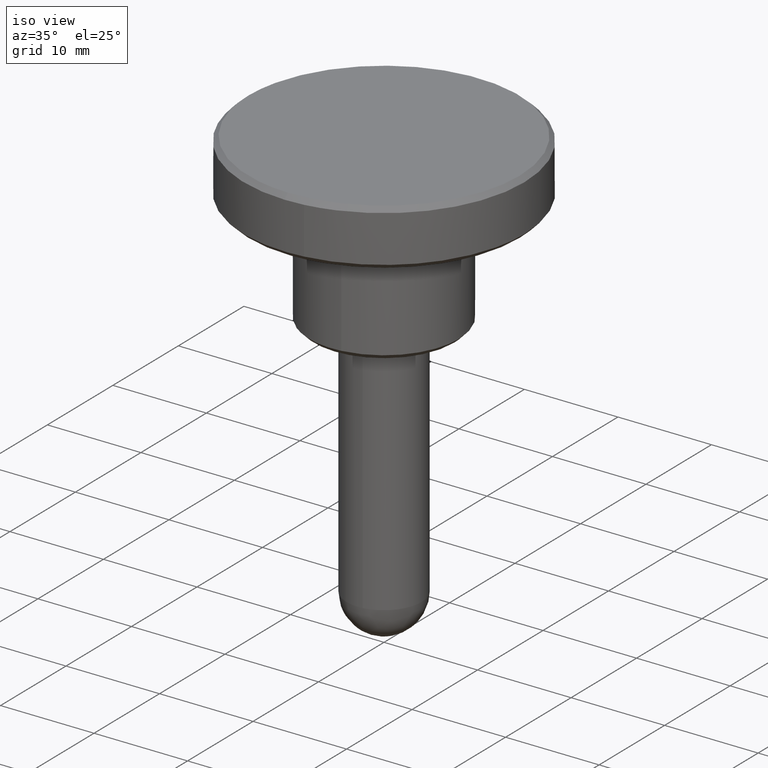
[diagram: clean part render]
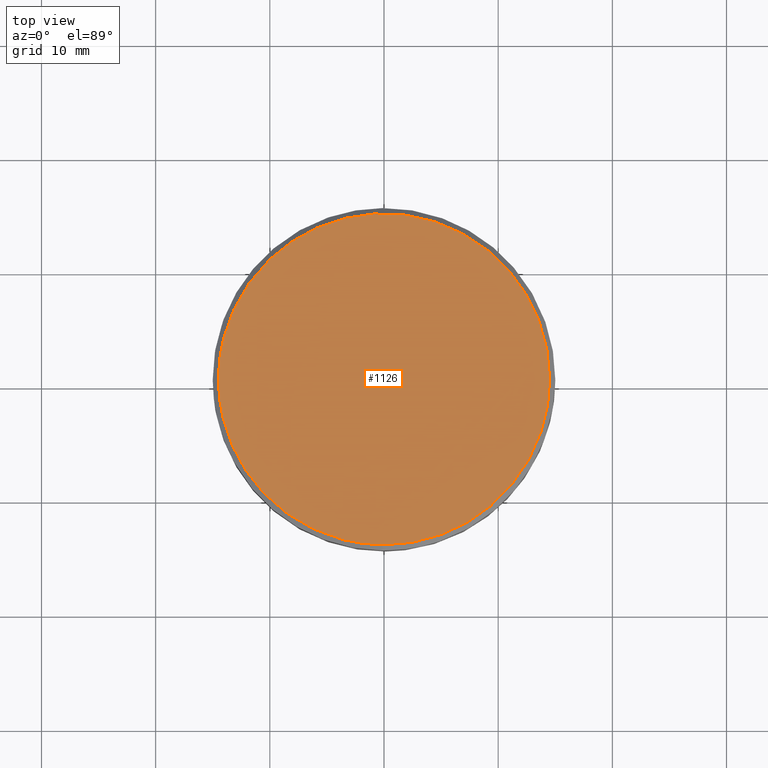
[diagram: tour spotlight — one face highlighted and labeled with its STEP entity id]
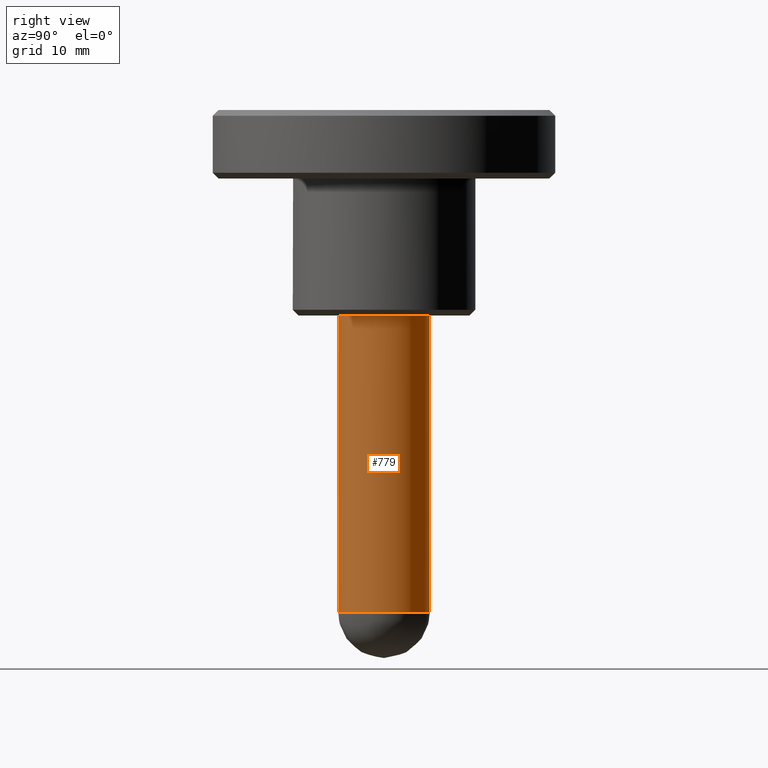
[diagram: tour spotlight — one face highlighted and labeled with its STEP entity id]
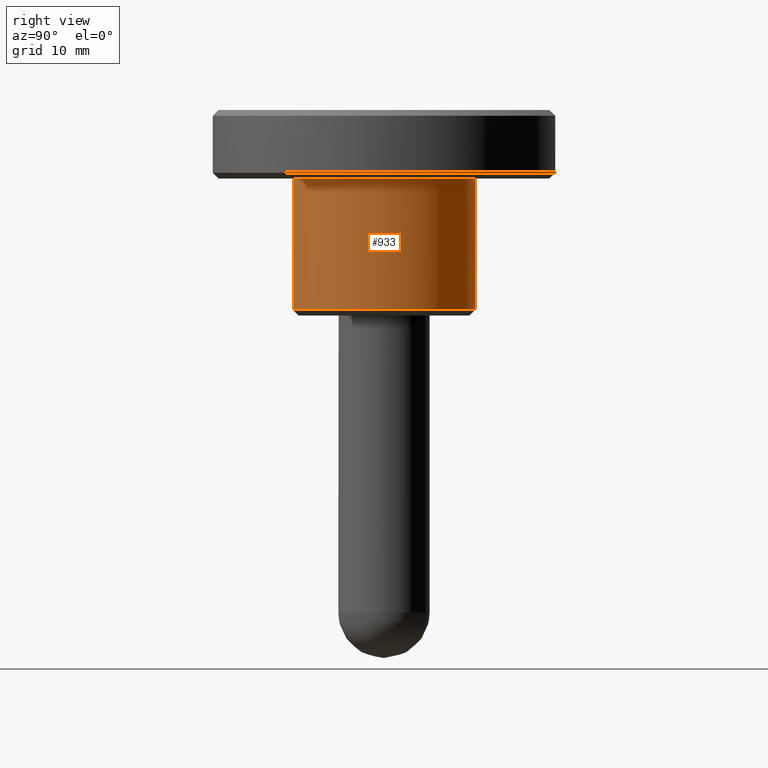
[diagram: tour spotlight — one face highlighted and labeled with its STEP entity id]
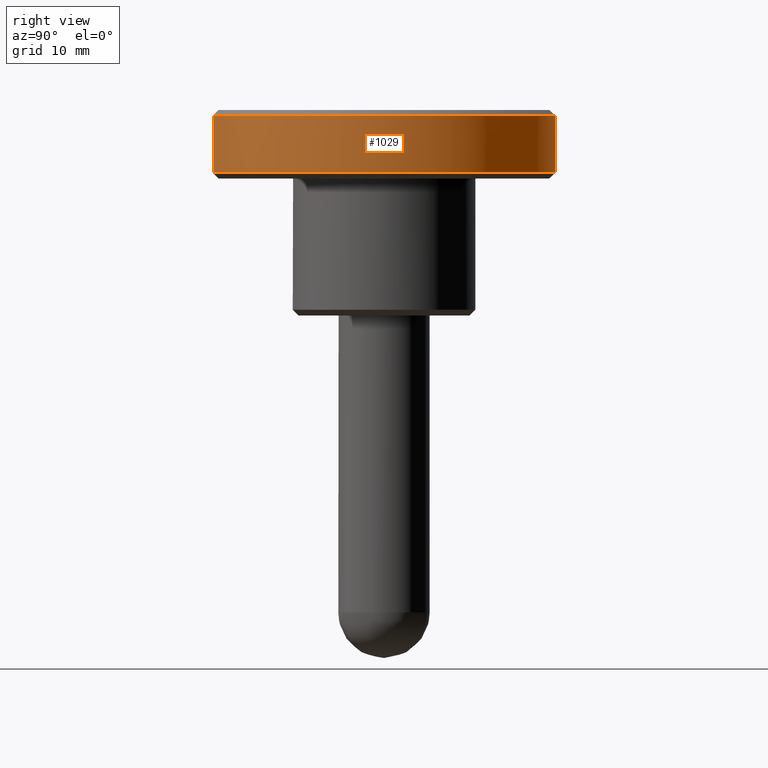
[diagram: tour spotlight — one face highlighted and labeled with its STEP entity id]
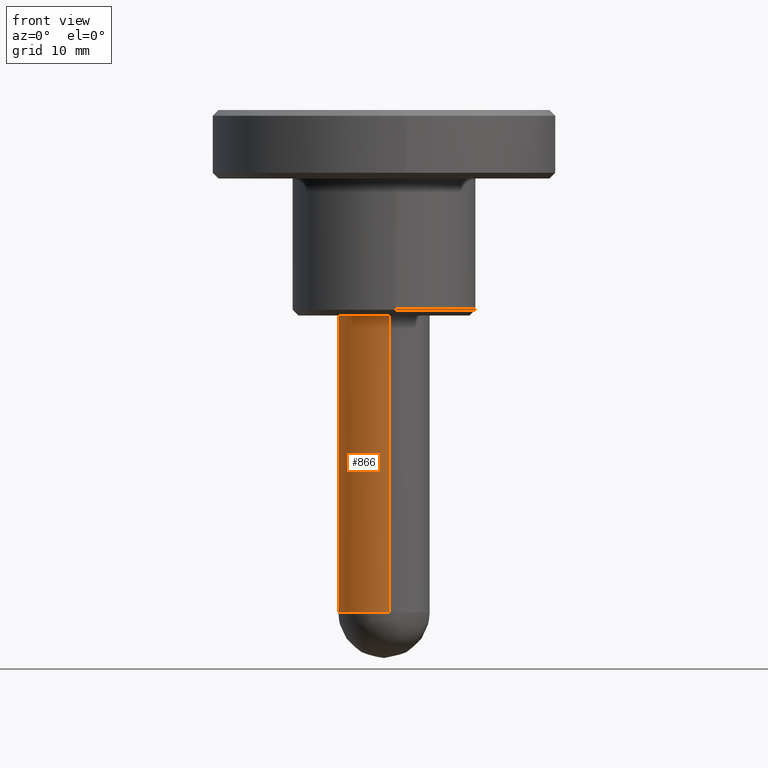
[diagram: tour spotlight — one face highlighted and labeled with its STEP entity id]
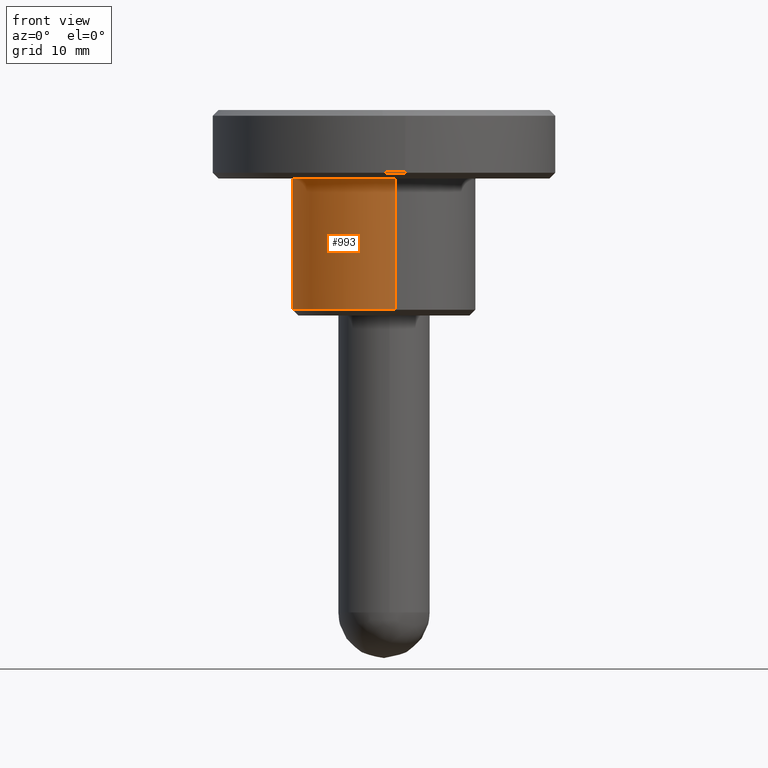
[diagram: tour spotlight — one face highlighted and labeled with its STEP entity id]
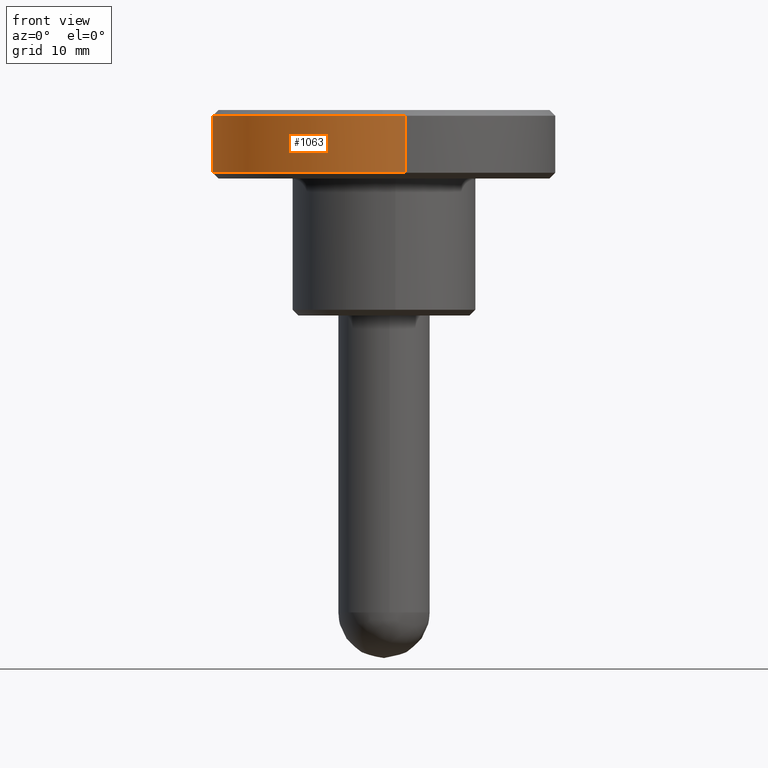
[diagram: tour spotlight — one face highlighted and labeled with its STEP entity id]
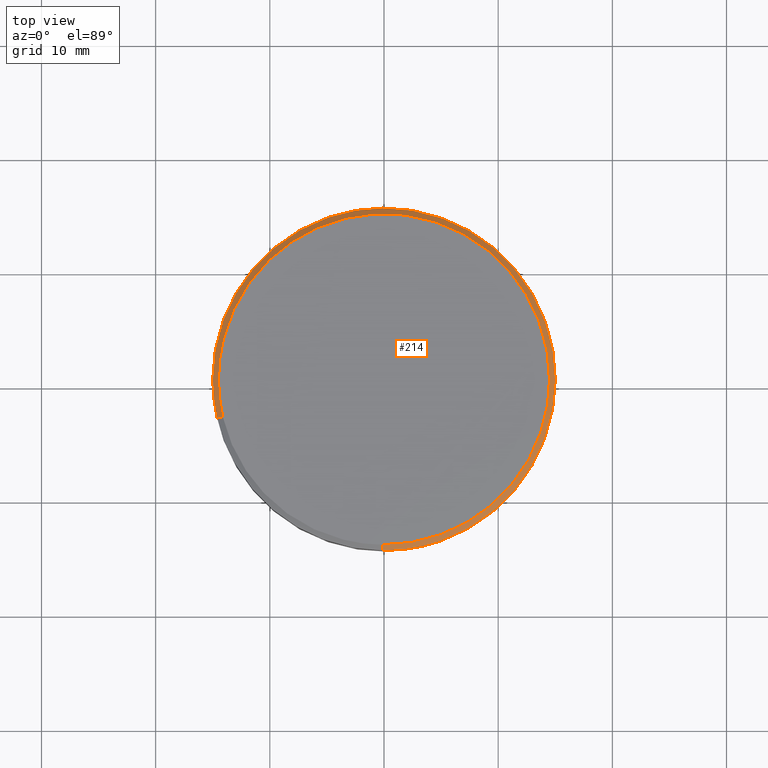
[diagram: tour spotlight — one face highlighted and labeled with its STEP entity id]
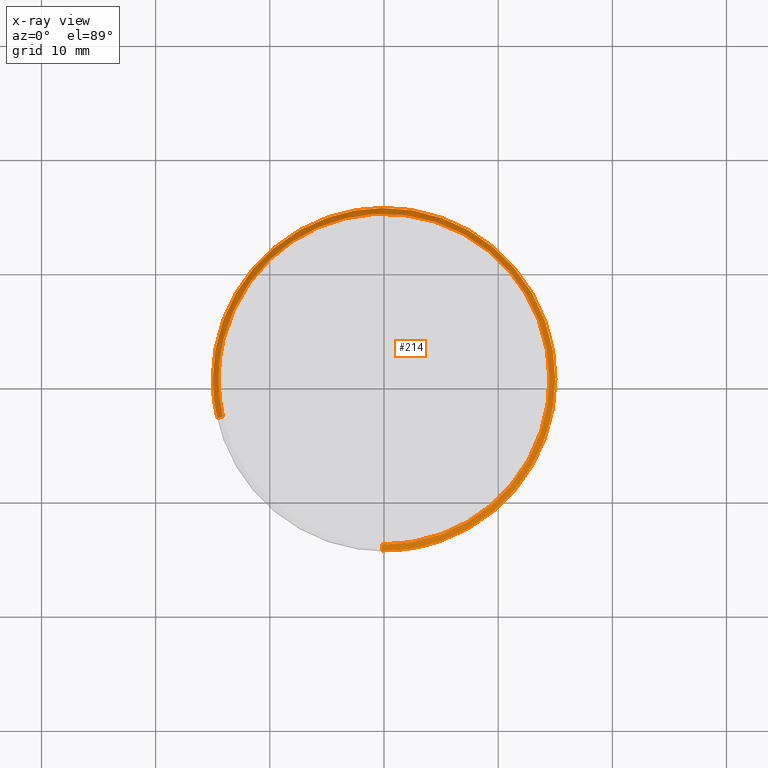
[diagram: x-ray of the same camera — body ghosted, this tour face saturated]
A machine part: a face-by-face anatomy tour. The part has 16 B-rep faces; the first image is the clean iso view, then the 8 largest visible faces are spotlighted one at a time (largest first), each with its STEP entity span.

Face 1 — top view, entity #1126. In plain terms, the highlighted face is a freeform B-spline surface patch.
Definition (entity closure, byte-faithful):
#87=CARTESIAN_POINT('',(-14.126163221083219,-3.271316654116937,17.999999999993580));
#88=VERTEX_POINT('',#87);
#94=CARTESIAN_POINT('',(-14.500000000000000,0.0,18.0));
#95=VERTEX_POINT('',#94);
#96=CARTESIAN_POINT('',(-14.500000000000000,0.0,18.0));
#97=CARTESIAN_POINT('',(-14.500000000000000,-1.657018829912993,18.0));
#98=CARTESIAN_POINT('',(-14.126163221083218,-3.271316654116937,17.999999999993580));
#106=(BOUNDED_CURVE()B_SPLINE_CURVE(2,(#96,#97,#98),.UNSPECIFIED.,.F.,.U.)B_SPLINE_CURVE_WITH_KNOTS((3,3),(0.500000000000000,0.538577028216653),.UNSPECIFIED.)CURVE()GEOMETRIC_REPRESENTATION_ITEM()RATIONAL_B_SPLINE_CURVE((1.0,0.954804200133468,0.923556557440740))REPRESENTATION_ITEM(''));
#107=EDGE_CURVE('',#95,#88,#106,.T.);
#109=CARTESIAN_POINT('',(14.500000000000000,0.0,18.0));
#110=VERTEX_POINT('',#109);
#111=CARTESIAN_POINT('',(14.500000000000000,0.0,18.0));
#112=CARTESIAN_POINT('',(14.500000000000000,14.500000000000000,18.000000000000007));
#113=CARTESIAN_POINT('',(0.0,14.500000000000000,18.0));
#114=CARTESIAN_POINT('',(-14.500000000000000,14.500000000000000,18.000000000000007));
#115=CARTESIAN_POINT('',(-14.500000000000000,0.0,18.0));
#123=(BOUNDED_CURVE()B_SPLINE_CURVE(2,(#111,#112,#113,#114,#115),.UNSPECIFIED.,.F.,.U.)B_SPLINE_CURVE_WITH_KNOTS((3,2,3),(0.0,0.250000000000000,0.500000000000000),.UNSPECIFIED.)CURVE()GEOMETRIC_REPRESENTATION_ITEM()RATIONAL_B_SPLINE_CURVE((1.0,0.707106781186548,1.0,0.707106781186548,1.0))REPRESENTATION_ITEM(''));
#124=EDGE_CURVE('',#110,#95,#123,.T.);
#126=CARTESIAN_POINT('',(-0.126534764776618,-14.499447884436879,17.999999999993189));
#127=VERTEX_POINT('',#126);
#128=CARTESIAN_POINT('',(-0.126534764776618,-14.499447884436877,17.999999999993193));
#129=CARTESIAN_POINT('',(-0.063268586950313,-14.499999999999996,18.0));
#130=CARTESIAN_POINT('',(0.0,-14.500000000000000,18.0));
#131=CARTESIAN_POINT('',(14.500000000000000,-14.500000000000000,18.000000000000007));
#132=CARTESIAN_POINT('',(14.500000000000000,0.0,18.0));
#140=(BOUNDED_CURVE()B_SPLINE_CURVE(2,(#128,#129,#130,#131,#132),.UNSPECIFIED.,.F.,.U.)B_SPLINE_CURVE_WITH_KNOTS((3,2,3),(0.748460105663795,0.750000000000000,1.0),.UNSPECIFIED.)CURVE()GEOMETRIC_REPRESENTATION_ITEM()RATIONAL_B_SPLINE_CURVE((0.996414028097587,0.998195901564945,1.0,0.707106781186548,1.0))REPRESENTATION_ITEM(''));
#141=EDGE_CURVE('',#127,#110,#140,.T.);
#243=CARTESIAN_POINT('',(-14.126163221083212,-3.271316654116937,17.999999999993573));
#244=CARTESIAN_POINT('',(-11.549053067946918,-14.399765077281751,18.000000000000007));
#245=CARTESIAN_POINT('',(-0.126534764776618,-14.499447884436881,17.999999999993189));
#253=(BOUNDED_CURVE()B_SPLINE_CURVE(2,(#243,#244,#245),.UNSPECIFIED.,.F.,.U.)B_SPLINE_CURVE_WITH_KNOTS((3,3),(0.538577028216653,0.748460105663795),.UNSPECIFIED.)CURVE()GEOMETRIC_REPRESENTATION_ITEM()RATIONAL_B_SPLINE_CURVE((0.923556557440740,0.753549905438256,0.996414028097586))REPRESENTATION_ITEM(''));
#254=EDGE_CURVE('',#88,#127,#253,.T.);
#1115=CARTESIAN_POINT('',(-15.948549943792370,-15.947970363458980,18.0));
#1116=CARTESIAN_POINT('',(15.948550721632991,-15.947970363458980,18.0));
#1117=CARTESIAN_POINT('',(-15.948549943792370,15.948523148855561,18.0));
#1118=CARTESIAN_POINT('',(15.948550721632991,15.948523148855561,18.0));
#1119=B_SPLINE_SURFACE_WITH_KNOTS('',1,1,((#1115,#1117),(#1116,#1118)),.UNSPECIFIED.,.F.,.F.,.U.,(2,2),(2,2),(0.0,31.897100665425359),(0.0,31.896493512314539),.UNSPECIFIED.);
#1120=ORIENTED_EDGE('',*,*,#124,.T.);
#1121=ORIENTED_EDGE('',*,*,#107,.T.);
#1122=ORIENTED_EDGE('',*,*,#254,.T.);
#1123=ORIENTED_EDGE('',*,*,#141,.T.);
#1124=EDGE_LOOP('',(#1120,#1121,#1122,#1123));
#1125=FACE_OUTER_BOUND('',#1124,.T.);
#1126=ADVANCED_FACE('',(#1125),#1119,.T.);

Face 2 — right view, entity #779. In plain terms, the highlighted face is a freeform B-spline surface patch.
Definition (entity closure, byte-faithful):
#677=CARTESIAN_POINT('',(0.440468848211500,-3.976075600400089,-26.650000000000006));
#678=CARTESIAN_POINT('',(0.468421425136964,-3.972578859829468,-26.649999999999999));
#679=CARTESIAN_POINT('',(4.030931322009780,-3.526925032532884,-26.650000000000006));
#680=CARTESIAN_POINT('',(3.999847692256684,0.034906141993496,-26.650000000000009));
#681=CARTESIAN_POINT('',(3.964941550263188,4.034753834250179,-26.650000000000009));
#682=CARTESIAN_POINT('',(-0.061981891688445,3.999611405768760,-26.650000000000002));
#683=CARTESIAN_POINT('',(-0.088906230941834,3.999376440619741,-26.649999999999995));
#684=CARTESIAN_POINT('',(0.440468848211500,-3.976075600400089,0.666249999999998));
#685=CARTESIAN_POINT('',(0.468421425136964,-3.972578859829468,0.666249999999998));
#686=CARTESIAN_POINT('',(4.030931322009780,-3.526925032532884,0.666249999999998));
#687=CARTESIAN_POINT('',(3.999847692256684,0.034906141993496,0.666249999999998));
#688=CARTESIAN_POINT('',(3.964941550263188,4.034753834250179,0.666249999999998));
#689=CARTESIAN_POINT('',(-0.061981891688445,3.999611405768760,0.666249999999998));
#690=CARTESIAN_POINT('',(-0.088906230941834,3.999376440619741,0.666249999999998));
#698=(BOUNDED_SURFACE()B_SPLINE_SURFACE(2,1,((#677,#684),(#678,#685),(#679,#686),(#680,#687),(#681,#688),(#682,#689),(#683,#690)),.UNSPECIFIED.,.F.,.F.,.U.)B_SPLINE_SURFACE_WITH_KNOTS((3,1,2,1,3),(2,2),(0.0,0.063630139945572,6.160853778077529,12.788270776047050,12.851894012383660),(0.0,27.316250000000011),.UNSPECIFIED.)GEOMETRIC_REPRESENTATION_ITEM()RATIONAL_B_SPLINE_SURFACE(((0.961610415052213,0.961610415052213),(0.959248266621436,0.959248266621436),(0.730538238691624,0.730538238691624),(1.0,1.0),(0.707106781186548,0.707106781186548),(1.002811776365916,1.002811776365916),(1.005623552731832,1.005623552731832)))REPRESENTATION_ITEM('')SURFACE());
#699=CARTESIAN_POINT('',(0.496505897792677,-3.969065619691763,-26.000000000000011));
#700=VERTEX_POINT('',#699);
#701=CARTESIAN_POINT('',(4.0,0.0,-26.0));
#702=VERTEX_POINT('',#701);
#703=CARTESIAN_POINT('',(0.496505897792677,-3.969065619691764,-26.000000000000014));
#704=CARTESIAN_POINT('',(4.000000000000001,-3.530799878763064,-26.0));
#705=CARTESIAN_POINT('',(4.0,0.0,-26.0));
#713=(BOUNDED_CURVE()B_SPLINE_CURVE(2,(#703,#704,#705),.UNSPECIFIED.,.F.,.U.)B_SPLINE_CURVE_WITH_KNOTS((3,3),(0.771473669333849,1.0),.UNSPECIFIED.)CURVE()GEOMETRIC_REPRESENTATION_ITEM()RATIONAL_B_SPLINE_CURVE((0.954005934130101,0.732264749710255,1.0))REPRESENTATION_ITEM(''));
#714=EDGE_CURVE('',#700,#702,#713,.T.);
#715=ORIENTED_EDGE('',*,*,#714,.T.);
#716=CARTESIAN_POINT('',(-0.034906142044346,3.999847692256241,-26.0));
#717=VERTEX_POINT('',#716);
#718=CARTESIAN_POINT('',(4.0,0.0,-26.0));
#719=CARTESIAN_POINT('',(4.000000000000000,4.000000000000000,-26.000000000000004));
#720=CARTESIAN_POINT('',(0.0,4.0,-26.0));
#721=CARTESIAN_POINT('',(-0.017453403333660,4.000000000000001,-26.0));
#722=CARTESIAN_POINT('',(-0.034906142044346,3.999847692256241,-26.0));
#730=(BOUNDED_CURVE()B_SPLINE_CURVE(2,(#718,#719,#720,#721,#722),.UNSPECIFIED.,.F.,.U.)B_SPLINE_CURVE_WITH_KNOTS((3,2,3),(0.0,0.250000000000000,0.251539894339466),.UNSPECIFIED.)CURVE()GEOMETRIC_REPRESENTATION_ITEM()RATIONAL_B_SPLINE_CURVE((1.0,0.707106781186548,1.0,0.998195901561125,0.996414028090041))REPRESENTATION_ITEM(''));
#731=EDGE_CURVE('',#702,#717,#730,.T.);
#732=ORIENTED_EDGE('',*,*,#731,.T.);
#733=CARTESIAN_POINT('',(-0.034906142037407,3.999847692256301,1.665335E-016));
#734=VERTEX_POINT('',#733);
#735=CARTESIAN_POINT('',(-0.034906142044346,3.999847692256241,-26.0));
#736=CARTESIAN_POINT('',(-0.034906142037407,3.999847692256301,1.665335E-016));
#737=QUASI_UNIFORM_CURVE('',1,(#735,#736),.UNSPECIFIED.,.F.,.U.);
#738=EDGE_CURVE('',#717,#734,#737,.T.);
#739=ORIENTED_EDGE('',*,*,#738,.T.);
#740=CARTESIAN_POINT('',(4.0,0.0,0.0));
#741=VERTEX_POINT('',#740);
#742=CARTESIAN_POINT('',(-0.034906142037407,3.999847692256302,1.665335E-016));
#743=CARTESIAN_POINT('',(-0.017453403326720,4.000000000000001,0.0));
#744=CARTESIAN_POINT('',(0.0,4.0,0.0));
#745=CARTESIAN_POINT('',(4.000000000000000,4.000000000000000,0.0));
#746=CARTESIAN_POINT('',(4.0,0.0,0.0));
#754=(BOUNDED_CURVE()B_SPLINE_CURVE(2,(#742,#743,#744,#745,#746),.UNSPECIFIED.,.F.,.U.)B_SPLINE_CURVE_WITH_KNOTS((3,2,3),(0.248460105661145,0.250000000000000,0.500000000000000),.UNSPECIFIED.)CURVE()GEOMETRIC_REPRESENTATION_ITEM()RATIONAL_B_SPLINE_CURVE((0.996414028091456,0.998195901561841,1.0,0.707106781186548,1.0))REPRESENTATION_ITEM(''));
#755=EDGE_CURVE('',#734,#741,#754,.T.);
#756=ORIENTED_EDGE('',*,*,#755,.T.);
#757=CARTESIAN_POINT('',(0.496507739550946,-3.969065389301050,-1.334283E-015));
#758=VERTEX_POINT('',#757);
#759=CARTESIAN_POINT('',(4.0,0.0,0.0));
#760=CARTESIAN_POINT('',(4.000000000000000,-3.530798227603606,0.0));
#761=CARTESIAN_POINT('',(0.496507739550946,-3.969065389301051,-1.334283E-015));
#769=(BOUNDED_CURVE()B_SPLINE_CURVE(2,(#759,#760,#761),.UNSPECIFIED.,.F.,.U.)B_SPLINE_CURVE_WITH_KNOTS((3,3),(0.500000000000000,0.728526252409665),.UNSPECIFIED.)CURVE()GEOMETRIC_REPRESENTATION_ITEM()RATIONAL_B_SPLINE_CURVE((1.0,0.732264841393431,0.954005782264194))REPRESENTATION_ITEM(''));
#770=EDGE_CURVE('',#741,#758,#769,.T.);
#771=ORIENTED_EDGE('',*,*,#770,.T.);
#772=CARTESIAN_POINT('',(0.496505897792677,-3.969065619691763,-26.000000000000011));
#773=CARTESIAN_POINT('',(0.496507739550946,-3.969065389301050,-1.334283E-015));
#774=QUASI_UNIFORM_CURVE('',1,(#772,#773),.UNSPECIFIED.,.F.,.U.);
#775=EDGE_CURVE('',#700,#758,#774,.T.);
#776=ORIENTED_EDGE('',*,*,#775,.F.);
#777=EDGE_LOOP('',(#715,#732,#739,#756,#771,#776));
#778=FACE_OUTER_BOUND('',#777,.T.);
#779=ADVANCED_FACE('',(#778),#698,.T.);

Face 3 — right view, entity #933. In plain terms, the highlighted face is a freeform B-spline surface patch.
Definition (entity closure, byte-faithful):
#500=CARTESIAN_POINT('',(0.993019486562945,-7.938130277293602,0.499999999999910));
#501=VERTEX_POINT('',#500);
#558=CARTESIAN_POINT('',(-0.069812210397845,7.999695385155572,0.499999999999947));
#559=VERTEX_POINT('',#558);
#565=CARTESIAN_POINT('',(8.0,0.0,0.499999999999945));
#566=VERTEX_POINT('',#565);
#567=CARTESIAN_POINT('',(8.0,0.0,0.499999999999945));
#568=CARTESIAN_POINT('',(8.0,8.0,0.499999999999945));
#569=CARTESIAN_POINT('',(0.0,8.0,0.499999999999945));
#570=CARTESIAN_POINT('',(-0.034906659378923,8.0,0.499999999999945));
#571=CARTESIAN_POINT('',(-0.069812210397845,7.999695385155572,0.499999999999947));
#579=(BOUNDED_CURVE()B_SPLINE_CURVE(2,(#567,#568,#569,#570,#571),.UNSPECIFIED.,.F.,.U.)B_SPLINE_CURVE_WITH_KNOTS((3,2,3),(0.500000000000000,0.750000000000000,0.751539887853642),.UNSPECIFIED.)CURVE()GEOMETRIC_REPRESENTATION_ITEM()RATIONAL_B_SPLINE_CURVE((1.0,0.707106781186548,1.0,0.998195909159740,0.996414043100054))REPRESENTATION_ITEM(''));
#580=EDGE_CURVE('',#566,#559,#579,.T.);
#582=CARTESIAN_POINT('',(0.993019486562945,-7.938130277293602,0.499999999999910));
#583=CARTESIAN_POINT('',(8.0,-7.061592862469056,0.499999999999945));
#584=CARTESIAN_POINT('',(8.0,0.0,0.499999999999945));
#592=(BOUNDED_CURVE()B_SPLINE_CURVE(2,(#582,#583,#584),.UNSPECIFIED.,.F.,.U.)B_SPLINE_CURVE_WITH_KNOTS((3,3),(0.271473832729034,0.500000000000000),.UNSPECIFIED.)CURVE()GEOMETRIC_REPRESENTATION_ITEM()RATIONAL_B_SPLINE_CURVE((0.954005617042673,0.732264941139622,1.0))REPRESENTATION_ITEM(''));
#593=EDGE_CURVE('',#501,#566,#592,.T.);
#867=CARTESIAN_POINT('',(0.993024016638634,-7.938129710604309,0.212499999999943));
#868=CARTESIAN_POINT('',(8.061862644019557,-7.053850065065769,0.212499999999943));
#869=CARTESIAN_POINT('',(7.999695384513368,0.069812283986991,0.212499999999943));
#870=CARTESIAN_POINT('',(7.929883100526377,8.069507668500359,0.212499999999943));
#871=CARTESIAN_POINT('',(-0.069812283986991,7.999695384513368,0.212499999999943));
#872=CARTESIAN_POINT('',(0.993024016638634,-7.938129710604309,12.294687500000002));
#873=CARTESIAN_POINT('',(8.061862644019557,-7.053850065065769,12.294687500000004));
#874=CARTESIAN_POINT('',(7.999695384513368,0.069812283986991,12.294687500000000));
#875=CARTESIAN_POINT('',(7.929883100526377,8.069507668500359,12.294687500000004));
#876=CARTESIAN_POINT('',(-0.069812283986991,7.999695384513368,12.294687500000000));
#884=(BOUNDED_SURFACE()B_SPLINE_SURFACE(2,1,((#867,#872),(#868,#873),(#869,#874),(#870,#875),(#871,#876)),.UNSPECIFIED.,.F.,.F.,.U.)B_SPLINE_SURFACE_WITH_KNOTS((3,2,3),(2,2),(0.0,12.194447276263910,25.449281272202949),(0.0,12.082187500000060),.UNSPECIFIED.)GEOMETRIC_REPRESENTATION_ITEM()RATIONAL_B_SPLINE_SURFACE(((0.956886118190660,0.956886118190660),(0.730538238691624,0.730538238691624),(1.0,1.0),(0.707106781186548,0.707106781186548),(1.0,1.0)))REPRESENTATION_ITEM('')SURFACE());
#885=ORIENTED_EDGE('',*,*,#593,.T.);
#886=ORIENTED_EDGE('',*,*,#580,.T.);
#887=CARTESIAN_POINT('',(-0.069811257577024,7.999695393470582,12.0));
#888=VERTEX_POINT('',#887);
#889=CARTESIAN_POINT('',(-0.069812210397845,7.999695385155572,0.499999999999947));
#890=CARTESIAN_POINT('',(-0.069811257577024,7.999695393470582,12.0));
#891=QUASI_UNIFORM_CURVE('',1,(#889,#890),.UNSPECIFIED.,.F.,.U.);
#892=EDGE_CURVE('',#559,#888,#891,.T.);
#893=ORIENTED_EDGE('',*,*,#892,.T.);
#894=CARTESIAN_POINT('',(8.0,0.0,12.0));
#895=VERTEX_POINT('',#894);
#896=CARTESIAN_POINT('',(-0.069811257577024,7.999695393470582,11.999999999999998));
#897=CARTESIAN_POINT('',(-0.034906293331316,8.0,12.000000000000002));
#898=CARTESIAN_POINT('',(0.0,8.0,12.0));
#899=CARTESIAN_POINT('',(8.0,8.0,12.0));
#900=CARTESIAN_POINT('',(8.0,0.0,12.0));
#908=(BOUNDED_CURVE()B_SPLINE_CURVE(2,(#896,#897,#898,#899,#900),.UNSPECIFIED.,.F.,.U.)B_SPLINE_CURVE_WITH_KNOTS((3,2,3),(0.248460128265212,0.250000000000000,0.500000000000000),.UNSPECIFIED.)CURVE()GEOMETRIC_REPRESENTATION_ITEM()RATIONAL_B_SPLINE_CURVE((0.996414080403603,0.998195928044152,1.0,0.707106781186548,1.0))REPRESENTATION_ITEM(''));
#909=EDGE_CURVE('',#888,#895,#908,.T.);
#910=ORIENTED_EDGE('',*,*,#909,.T.);
#911=CARTESIAN_POINT('',(0.993015708576855,-7.938130749896319,12.0));
#912=VERTEX_POINT('',#911);
#913=CARTESIAN_POINT('',(8.0,0.0,12.0));
#914=CARTESIAN_POINT('',(8.0,-7.061596249480050,12.0));
#915=CARTESIAN_POINT('',(0.993015708576855,-7.938130749896319,11.999999999999996));
#923=(BOUNDED_CURVE()B_SPLINE_CURVE(2,(#913,#914,#915),.UNSPECIFIED.,.F.,.U.)B_SPLINE_CURVE_WITH_KNOTS((3,3),(0.500000000000000,0.728526247534458),.UNSPECIFIED.)CURVE()GEOMETRIC_REPRESENTATION_ITEM()RATIONAL_B_SPLINE_CURVE((1.0,0.732264847105091,0.954005772803286))REPRESENTATION_ITEM(''));
#924=EDGE_CURVE('',#895,#912,#923,.T.);
#925=ORIENTED_EDGE('',*,*,#924,.T.);
#926=CARTESIAN_POINT('',(0.993019486562945,-7.938130277293602,0.499999999999910));
#927=CARTESIAN_POINT('',(0.993015708576855,-7.938130749896319,12.0));
#928=QUASI_UNIFORM_CURVE('',1,(#926,#927),.UNSPECIFIED.,.F.,.U.);
#929=EDGE_CURVE('',#501,#912,#928,.T.);
#930=ORIENTED_EDGE('',*,*,#929,.F.);
#931=EDGE_LOOP('',(#885,#886,#893,#910,#925,#930));
#932=FACE_OUTER_BOUND('',#931,.T.);
#933=ADVANCED_FACE('',(#932),#884,.T.);

Face 4 — right view, entity #1029. In plain terms, the highlighted face is a freeform B-spline surface patch.
Definition (entity closure, byte-faithful):
#150=CARTESIAN_POINT('',(1.861906388305662,-14.883994914034250,17.499999999999989));
#151=VERTEX_POINT('',#150);
#167=CARTESIAN_POINT('',(15.0,0.0,17.500000000000000));
#168=VERTEX_POINT('',#167);
#169=CARTESIAN_POINT('',(15.0,0.0,17.500000000000000));
#170=CARTESIAN_POINT('',(15.000000000000007,-13.240491233270989,17.500000000000004));
#171=CARTESIAN_POINT('',(1.861906388305663,-14.883994914034256,17.499999999999996));
#179=(BOUNDED_CURVE()B_SPLINE_CURVE(2,(#169,#170,#171),.UNSPECIFIED.,.F.,.U.)B_SPLINE_CURVE_WITH_KNOTS((3,3),(0.500000000000000,0.728526225612696),.UNSPECIFIED.)CURVE()GEOMETRIC_REPRESENTATION_ITEM()RATIONAL_B_SPLINE_CURVE((1.0,0.732264872788033,0.954005730261552))REPRESENTATION_ITEM(''));
#180=EDGE_CURVE('',#168,#151,#179,.T.);
#182=CARTESIAN_POINT('',(-0.130883460972044,14.999428973112000,17.499999999999940));
#183=VERTEX_POINT('',#182);
#184=CARTESIAN_POINT('',(-0.130883460972044,14.999428973112000,17.499999999999936));
#185=CARTESIAN_POINT('',(-0.065442976142672,15.000000000000005,17.500000000000004));
#186=CARTESIAN_POINT('',(0.0,15.0,17.500000000000000));
#187=CARTESIAN_POINT('',(14.999999999999996,14.999999999999996,17.500000000000000));
#188=CARTESIAN_POINT('',(15.0,0.0,17.500000000000000));
#196=(BOUNDED_CURVE()B_SPLINE_CURVE(2,(#184,#185,#186,#187,#188),.UNSPECIFIED.,.F.,.U.)B_SPLINE_CURVE_WITH_KNOTS((3,2,3),(0.248460276782570,0.250000000000000,0.500000000000000),.UNSPECIFIED.)CURVE()GEOMETRIC_REPRESENTATION_ITEM()RATIONAL_B_SPLINE_CURVE((0.996414424114650,0.998196102043060,1.0,0.707106781186547,1.0))REPRESENTATION_ITEM(''));
#197=EDGE_CURVE('',#183,#168,#196,.T.);
#361=CARTESIAN_POINT('',(-0.130883458394078,14.999428973134490,12.500000000000000));
#362=VERTEX_POINT('',#361);
#376=CARTESIAN_POINT('',(15.0,0.0,12.500000000000000));
#377=VERTEX_POINT('',#376);
#378=CARTESIAN_POINT('',(15.0,0.0,12.500000000000000));
#379=CARTESIAN_POINT('',(14.999999999999996,14.999999999999996,12.499999999999998));
#380=CARTESIAN_POINT('',(0.0,15.0,12.500000000000000));
#381=CARTESIAN_POINT('',(-0.065442974853613,15.000000000000005,12.499999999999996));
#382=CARTESIAN_POINT('',(-0.130883458394078,14.999428973134487,12.499999999999995));
#390=(BOUNDED_CURVE()B_SPLINE_CURVE(2,(#378,#379,#380,#381,#382),.UNSPECIFIED.,.F.,.U.)B_SPLINE_CURVE_WITH_KNOTS((3,2,3),(0.500000000000000,0.750000000000000,0.751539723187156),.UNSPECIFIED.)CURVE()GEOMETRIC_REPRESENTATION_ITEM()RATIONAL_B_SPLINE_CURVE((1.0,0.707106781186547,1.0,0.998196102078528,0.996414424184712))REPRESENTATION_ITEM(''));
#391=EDGE_CURVE('',#377,#362,#390,.T.);
#393=CARTESIAN_POINT('',(12.282991690660831,-8.609768587317625,12.500000000000121));
#394=VERTEX_POINT('',#393);
#395=CARTESIAN_POINT('',(12.282991690660834,-8.609768587317625,12.500000000000121));
#396=CARTESIAN_POINT('',(14.999999999999995,-4.733591179226078,12.499999999999995));
#397=CARTESIAN_POINT('',(15.0,0.0,12.500000000000000));
#405=(BOUNDED_CURVE()B_SPLINE_CURVE(2,(#395,#396,#397),.UNSPECIFIED.,.F.,.U.)B_SPLINE_CURVE_WITH_KNOTS((3,3),(0.401326273797064,0.500000000000000),.UNSPECIFIED.)CURVE()GEOMETRIC_REPRESENTATION_ITEM()RATIONAL_B_SPLINE_CURVE((0.860049271925841,0.884396538880420,1.0))REPRESENTATION_ITEM(''));
#406=EDGE_CURVE('',#394,#377,#405,.T.);
#444=CARTESIAN_POINT('',(1.861916382287420,-14.883993663844260,12.500000000000000));
#445=VERTEX_POINT('',#444);
#446=CARTESIAN_POINT('',(1.861916382287420,-14.883993663844262,12.500000000000002));
#447=CARTESIAN_POINT('',(8.463975992921299,-14.058107599693944,12.499999999999993));
#448=CARTESIAN_POINT('',(12.282991690660836,-8.609768587317625,12.500000000000123));
#456=(BOUNDED_CURVE()B_SPLINE_CURVE(2,(#446,#447,#448),.UNSPECIFIED.,.F.,.U.)B_SPLINE_CURVE_WITH_KNOTS((3,3),(0.271473887626029,0.401326273797064),.UNSPECIFIED.)CURVE()GEOMETRIC_REPRESENTATION_ITEM()RATIONAL_B_SPLINE_CURVE((0.954005510508759,0.828008820708937,0.860049271925840))REPRESENTATION_ITEM(''));
#457=EDGE_CURVE('',#445,#394,#456,.T.);
#994=CARTESIAN_POINT('',(1.861920031197439,-14.883993207383075,12.374999999999993));
#995=CARTESIAN_POINT('',(15.115992457536670,-13.225968871998314,12.374999999999996));
#996=CARTESIAN_POINT('',(14.999428845962560,0.130898032475608,12.375000000000000));
#997=CARTESIAN_POINT('',(14.868530813486954,15.130326878438172,12.374999999999996));
#998=CARTESIAN_POINT('',(-0.130898032475608,14.999428845962560,12.375000000000000));
#999=CARTESIAN_POINT('',(1.861920031197439,-14.883993207383075,17.628125000000004));
#1000=CARTESIAN_POINT('',(15.115992457536670,-13.225968871998314,17.628125000000011));
#1001=CARTESIAN_POINT('',(14.999428845962560,0.130898032475608,17.628125000000001));
#1002=CARTESIAN_POINT('',(14.868530813486954,15.130326878438172,17.628125000000001));
#1003=CARTESIAN_POINT('',(-0.130898032475608,14.999428845962560,17.628125000000001));
#1011=(BOUNDED_SURFACE()B_SPLINE_SURFACE(2,1,((#994,#999),(#995,#1000),(#996,#1001),(#997,#1002),(#998,#1003)),.UNSPECIFIED.,.F.,.F.,.U.)B_SPLINE_SURFACE_WITH_KNOTS((3,2,3),(2,2),(0.0,22.864588642994839,47.717402385380531),(0.0,5.253125000000010),.UNSPECIFIED.)GEOMETRIC_REPRESENTATION_ITEM()RATIONAL_B_SPLINE_SURFACE(((0.956886118190660,0.956886118190660),(0.730538238691624,0.730538238691624),(1.0,1.0),(0.707106781186548,0.707106781186548),(1.0,1.0)))REPRESENTATION_ITEM('')SURFACE());
#1012=ORIENTED_EDGE('',*,*,#180,.T.);
#1013=CARTESIAN_POINT('',(1.861916382287420,-14.883993663844260,12.500000000000000));
#1014=CARTESIAN_POINT('',(1.861906388305662,-14.883994914034250,17.499999999999989));
#1015=QUASI_UNIFORM_CURVE('',1,(#1013,#1014),.UNSPECIFIED.,.F.,.U.);
#1016=EDGE_CURVE('',#445,#151,#1015,.T.);
#1017=ORIENTED_EDGE('',*,*,#1016,.F.);
#1018=ORIENTED_EDGE('',*,*,#457,.T.);
#1019=ORIENTED_EDGE('',*,*,#406,.T.);
#1020=ORIENTED_EDGE('',*,*,#391,.T.);
#1021=CARTESIAN_POINT('',(-0.130883458394078,14.999428973134490,12.500000000000000));
#1022=CARTESIAN_POINT('',(-0.130883460972044,14.999428973112000,17.499999999999940));
#1023=QUASI_UNIFORM_CURVE('',1,(#1021,#1022),.UNSPECIFIED.,.F.,.U.);
#1024=EDGE_CURVE('',#362,#183,#1023,.T.);
#1025=ORIENTED_EDGE('',*,*,#1024,.T.);
#1026=ORIENTED_EDGE('',*,*,#197,.T.);
#1027=EDGE_LOOP('',(#1012,#1017,#1018,#1019,#1020,#1025,#1026));
#1028=FACE_OUTER_BOUND('',#1027,.T.);
#1029=ADVANCED_FACE('',(#1028),#1011,.T.);

Face 5 — front view, entity #866. In plain terms, the highlighted face is a freeform B-spline surface patch.
Definition (entity closure, byte-faithful):
#699=CARTESIAN_POINT('',(0.496505897792677,-3.969065619691763,-26.000000000000011));
#700=VERTEX_POINT('',#699);
#716=CARTESIAN_POINT('',(-0.034906142044346,3.999847692256241,-26.0));
#717=VERTEX_POINT('',#716);
#733=CARTESIAN_POINT('',(-0.034906142037407,3.999847692256301,1.665335E-016));
#734=VERTEX_POINT('',#733);
#735=CARTESIAN_POINT('',(-0.034906142044346,3.999847692256241,-26.0));
#736=CARTESIAN_POINT('',(-0.034906142037407,3.999847692256301,1.665335E-016));
#737=QUASI_UNIFORM_CURVE('',1,(#735,#736),.UNSPECIFIED.,.F.,.U.);
#738=EDGE_CURVE('',#717,#734,#737,.T.);
#757=CARTESIAN_POINT('',(0.496507739550946,-3.969065389301050,-1.334283E-015));
#758=VERTEX_POINT('',#757);
#772=CARTESIAN_POINT('',(0.496505897792677,-3.969065619691763,-26.000000000000011));
#773=CARTESIAN_POINT('',(0.496507739550946,-3.969065389301050,-1.334283E-015));
#774=QUASI_UNIFORM_CURVE('',1,(#772,#773),.UNSPECIFIED.,.F.,.U.);
#775=EDGE_CURVE('',#700,#758,#774,.T.);
#780=CARTESIAN_POINT('',(-0.034906141993496,3.999847692256684,-26.650000000000009));
#781=CARTESIAN_POINT('',(-4.034753834250179,3.964941550263188,-26.650000000000009));
#782=CARTESIAN_POINT('',(-3.999847692256684,-0.034906141993496,-26.650000000000009));
#783=CARTESIAN_POINT('',(-3.964941550263188,-4.034753834250179,-26.650000000000009));
#784=CARTESIAN_POINT('',(0.034906141993496,-3.999847692256684,-26.650000000000009));
#785=CARTESIAN_POINT('',(0.266600635832694,-3.997825725041103,-26.650000000000009));
#786=CARTESIAN_POINT('',(0.496512008319317,-3.969064855302155,-26.650000000000006));
#787=CARTESIAN_POINT('',(-0.034906141993496,3.999847692256684,0.666249999999998));
#788=CARTESIAN_POINT('',(-4.034753834250179,3.964941550263188,0.666249999999998));
#789=CARTESIAN_POINT('',(-3.999847692256684,-0.034906141993496,0.666249999999998));
#790=CARTESIAN_POINT('',(-3.964941550263188,-4.034753834250179,0.666249999999998));
#791=CARTESIAN_POINT('',(0.034906141993496,-3.999847692256684,0.666249999999998));
#792=CARTESIAN_POINT('',(0.266600635832694,-3.997825725041103,0.666249999999998));
#793=CARTESIAN_POINT('',(0.496512008319317,-3.969064855302155,0.666249999999998));
#801=(BOUNDED_SURFACE()B_SPLINE_SURFACE(2,1,((#780,#787),(#781,#788),(#782,#789),(#783,#790),(#784,#791),(#785,#792),(#786,#793)),.UNSPECIFIED.,.F.,.F.,.U.)B_SPLINE_SURFACE_WITH_KNOTS((3,2,2,3),(2,2),(0.0,6.627416997969519,13.254833995939039,13.785027355776601),(0.0,27.316250000000011),.UNSPECIFIED.)GEOMETRIC_REPRESENTATION_ITEM()RATIONAL_B_SPLINE_SURFACE(((1.0,1.0),(0.707106781186548,0.707106781186548),(1.0,1.0),(0.707106781186548,0.707106781186548),(1.0,1.0),(0.976568542494924,0.976568542494924),(0.956886118190660,0.956886118190660)))REPRESENTATION_ITEM('')SURFACE());
#802=CARTESIAN_POINT('',(-4.0,0.0,-26.0));
#803=VERTEX_POINT('',#802);
#804=CARTESIAN_POINT('',(-4.0,0.0,-26.0));
#805=CARTESIAN_POINT('',(-4.000000000000000,-4.000000000000000,-26.000000000000004));
#806=CARTESIAN_POINT('',(0.0,-4.0,-26.0));
#807=CARTESIAN_POINT('',(0.249216619105805,-4.000000000000001,-25.999999999999996));
#808=CARTESIAN_POINT('',(0.496505897792677,-3.969065619691764,-26.000000000000014));
#816=(BOUNDED_CURVE()B_SPLINE_CURVE(2,(#804,#805,#806,#807,#808),.UNSPECIFIED.,.F.,.U.)B_SPLINE_CURVE_WITH_KNOTS((3,2,3),(0.500000000000000,0.750000000000000,0.771473669333849),.UNSPECIFIED.)CURVE()GEOMETRIC_REPRESENTATION_ITEM()RATIONAL_B_SPLINE_CURVE((1.0,0.707106781186548,1.0,0.974842031476293,0.954005934130101))REPRESENTATION_ITEM(''));
#817=EDGE_CURVE('',#803,#700,#816,.T.);
#818=ORIENTED_EDGE('',*,*,#817,.T.);
#819=ORIENTED_EDGE('',*,*,#775,.T.);
#820=CARTESIAN_POINT('',(-4.0,0.0,0.0));
#821=VERTEX_POINT('',#820);
#822=CARTESIAN_POINT('',(0.496507739550946,-3.969065389301051,-1.334283E-015));
#823=CARTESIAN_POINT('',(0.249217550764576,-4.0,0.0));
#824=CARTESIAN_POINT('',(0.0,-4.0,0.0));
#825=CARTESIAN_POINT('',(-4.000000000000000,-4.000000000000000,0.0));
#826=CARTESIAN_POINT('',(-4.0,0.0,0.0));
#834=(BOUNDED_CURVE()B_SPLINE_CURVE(2,(#822,#823,#824,#825,#826),.UNSPECIFIED.,.F.,.U.)B_SPLINE_CURVE_WITH_KNOTS((3,2,3),(0.728526252409665,0.750000000000000,1.0),.UNSPECIFIED.)CURVE()GEOMETRIC_REPRESENTATION_ITEM()RATIONAL_B_SPLINE_CURVE((0.954005782264194,0.974841939793117,1.0,0.707106781186548,1.0))REPRESENTATION_ITEM(''));
#835=EDGE_CURVE('',#758,#821,#834,.T.);
#836=ORIENTED_EDGE('',*,*,#835,.T.);
#837=CARTESIAN_POINT('',(-4.0,0.0,0.0));
#838=CARTESIAN_POINT('',(-4.000000000000001,3.965244842292845,0.0));
#839=CARTESIAN_POINT('',(-0.034906142037407,3.999847692256301,1.665335E-016));
#847=(BOUNDED_CURVE()B_SPLINE_CURVE(2,(#837,#838,#839),.UNSPECIFIED.,.F.,.U.)B_SPLINE_CURVE_WITH_KNOTS((3,3),(0.0,0.248460105661145),.UNSPECIFIED.)CURVE()GEOMETRIC_REPRESENTATION_ITEM()RATIONAL_B_SPLINE_CURVE((1.0,0.708910879624707,0.996414028091455))REPRESENTATION_ITEM(''));
#848=EDGE_CURVE('',#821,#734,#847,.T.);
#849=ORIENTED_EDGE('',*,*,#848,.T.);
#850=ORIENTED_EDGE('',*,*,#738,.F.);
#851=CARTESIAN_POINT('',(-0.034906142044346,3.999847692256241,-25.999999999999996));
#852=CARTESIAN_POINT('',(-4.0,3.965244842279088,-26.000000000000004));
#853=CARTESIAN_POINT('',(-4.0,0.0,-26.0));
#861=(BOUNDED_CURVE()B_SPLINE_CURVE(2,(#851,#852,#853),.UNSPECIFIED.,.F.,.U.)B_SPLINE_CURVE_WITH_KNOTS((3,3),(0.251539894339466,0.500000000000000),.UNSPECIFIED.)CURVE()GEOMETRIC_REPRESENTATION_ITEM()RATIONAL_B_SPLINE_CURVE((0.996414028090041,0.708910879625423,1.0))REPRESENTATION_ITEM(''));
#862=EDGE_CURVE('',#717,#803,#861,.T.);
#863=ORIENTED_EDGE('',*,*,#862,.T.);
#864=EDGE_LOOP('',(#818,#819,#836,#849,#850,#863));
#865=FACE_OUTER_BOUND('',#864,.T.);
#866=ADVANCED_FACE('',(#865),#801,.T.);

Face 6 — front view, entity #993. In plain terms, the highlighted face is a freeform B-spline surface patch.
Definition (entity closure, byte-faithful):
#498=CARTESIAN_POINT('',(-3.233723455946810,-7.317310476570038,0.500000000003835));
#499=VERTEX_POINT('',#498);
#500=CARTESIAN_POINT('',(0.993019486562945,-7.938130277293602,0.499999999999910));
#501=VERTEX_POINT('',#500);
#502=CARTESIAN_POINT('',(-3.233723455946809,-7.317310476570038,0.500000000003835));
#503=CARTESIAN_POINT('',(-1.688924938063301,-8.0,0.499999999999945));
#504=CARTESIAN_POINT('',(0.0,-8.0,0.499999999999945));
#505=CARTESIAN_POINT('',(0.498437128715275,-8.0,0.499999999999945));
#506=CARTESIAN_POINT('',(0.993019486562945,-7.938130277293602,0.499999999999910));
#514=(BOUNDED_CURVE()B_SPLINE_CURVE(2,(#502,#503,#504,#505,#506),.UNSPECIFIED.,.F.,.U.)B_SPLINE_CURVE_WITH_KNOTS((3,2,3),(0.181361578458131,0.250000000000000,0.271473832729034),.UNSPECIFIED.)CURVE()GEOMETRIC_REPRESENTATION_ITEM()RATIONAL_B_SPLINE_CURVE((0.883326595749981,0.919585087121309,1.0,0.974841840046926,0.954005617042673))REPRESENTATION_ITEM(''));
#515=EDGE_CURVE('',#499,#501,#514,.T.);
#558=CARTESIAN_POINT('',(-0.069812210397845,7.999695385155572,0.499999999999947));
#559=VERTEX_POINT('',#558);
#616=CARTESIAN_POINT('',(-8.0,0.0,0.499999999999945));
#617=VERTEX_POINT('',#616);
#618=CARTESIAN_POINT('',(-8.0,0.0,0.499999999999945));
#619=CARTESIAN_POINT('',(-8.0,-5.210960020667233,0.499999999999945));
#620=CARTESIAN_POINT('',(-3.233723455946809,-7.317310476570038,0.500000000003835));
#628=(BOUNDED_CURVE()B_SPLINE_CURVE(2,(#618,#619,#620),.UNSPECIFIED.,.F.,.U.)B_SPLINE_CURVE_WITH_KNOTS((3,3),(0.0,0.181361578458131),.UNSPECIFIED.)CURVE()GEOMETRIC_REPRESENTATION_ITEM()RATIONAL_B_SPLINE_CURVE((1.0,0.787521694065238,0.883326595749981))REPRESENTATION_ITEM(''));
#629=EDGE_CURVE('',#617,#499,#628,.T.);
#631=CARTESIAN_POINT('',(-0.069812210397845,7.999695385155572,0.499999999999947));
#632=CARTESIAN_POINT('',(-8.0,7.930489976581037,0.499999999999945));
#633=CARTESIAN_POINT('',(-8.0,0.0,0.499999999999945));
#641=(BOUNDED_CURVE()B_SPLINE_CURVE(2,(#631,#632,#633),.UNSPECIFIED.,.F.,.U.)B_SPLINE_CURVE_WITH_KNOTS((3,3),(0.751539887853642,1.0),.UNSPECIFIED.)CURVE()GEOMETRIC_REPRESENTATION_ITEM()RATIONAL_B_SPLINE_CURVE((0.996414043100055,0.708910872026807,1.0))REPRESENTATION_ITEM(''));
#642=EDGE_CURVE('',#559,#617,#641,.T.);
#887=CARTESIAN_POINT('',(-0.069811257577024,7.999695393470582,12.0));
#888=VERTEX_POINT('',#887);
#889=CARTESIAN_POINT('',(-0.069812210397845,7.999695385155572,0.499999999999947));
#890=CARTESIAN_POINT('',(-0.069811257577024,7.999695393470582,12.0));
#891=QUASI_UNIFORM_CURVE('',1,(#889,#890),.UNSPECIFIED.,.F.,.U.);
#892=EDGE_CURVE('',#559,#888,#891,.T.);
#911=CARTESIAN_POINT('',(0.993015708576855,-7.938130749896319,12.0));
#912=VERTEX_POINT('',#911);
#926=CARTESIAN_POINT('',(0.993019486562945,-7.938130277293602,0.499999999999910));
#927=CARTESIAN_POINT('',(0.993015708576855,-7.938130749896319,12.0));
#928=QUASI_UNIFORM_CURVE('',1,(#926,#927),.UNSPECIFIED.,.F.,.U.);
#929=EDGE_CURVE('',#501,#912,#928,.T.);
#934=CARTESIAN_POINT('',(-0.069812283986991,7.999695384513368,0.212499999999943));
#935=CARTESIAN_POINT('',(-8.069507668500359,7.929883100526377,0.212499999999943));
#936=CARTESIAN_POINT('',(-7.999695384513368,-0.069812283986991,0.212499999999943));
#937=CARTESIAN_POINT('',(-7.929883100526377,-8.069507668500359,0.212499999999943));
#938=CARTESIAN_POINT('',(0.069812283986991,-7.999695384513368,0.212499999999943));
#939=CARTESIAN_POINT('',(0.533201271665389,-7.995651450082205,0.212499999999943));
#940=CARTESIAN_POINT('',(0.993024016638634,-7.938129710604309,0.212499999999943));
#941=CARTESIAN_POINT('',(-0.069812283986991,7.999695384513368,12.294687500000000));
#942=CARTESIAN_POINT('',(-8.069507668500359,7.929883100526377,12.294687500000004));
#943=CARTESIAN_POINT('',(-7.999695384513368,-0.069812283986991,12.294687500000000));
#944=CARTESIAN_POINT('',(-7.929883100526377,-8.069507668500359,12.294687500000004));
#945=CARTESIAN_POINT('',(0.069812283986991,-7.999695384513368,12.294687500000000));
#946=CARTESIAN_POINT('',(0.533201271665389,-7.995651450082205,12.294687500000000));
#947=CARTESIAN_POINT('',(0.993024016638634,-7.938129710604309,12.294687500000002));
#955=(BOUNDED_SURFACE()B_SPLINE_SURFACE(2,1,((#934,#941),(#935,#942),(#936,#943),(#937,#944),(#938,#945),(#939,#946),(#940,#947)),.UNSPECIFIED.,.F.,.F.,.U.)B_SPLINE_SURFACE_WITH_KNOTS((3,2,2,3),(2,2),(0.0,13.254833995939039,26.509667991878079,27.570054711553201),(0.0,12.082187500000060),.UNSPECIFIED.)GEOMETRIC_REPRESENTATION_ITEM()RATIONAL_B_SPLINE_SURFACE(((1.0,1.0),(0.707106781186548,0.707106781186548),(1.0,1.0),(0.707106781186548,0.707106781186548),(1.0,1.0),(0.976568542494924,0.976568542494924),(0.956886118190660,0.956886118190660)))REPRESENTATION_ITEM('')SURFACE());
#956=ORIENTED_EDGE('',*,*,#629,.T.);
#957=ORIENTED_EDGE('',*,*,#515,.T.);
#958=ORIENTED_EDGE('',*,*,#929,.T.);
#959=CARTESIAN_POINT('',(-8.0,0.0,12.0));
#960=VERTEX_POINT('',#959);
#961=CARTESIAN_POINT('',(0.993015708576855,-7.938130749896319,11.999999999999996));
#962=CARTESIAN_POINT('',(0.498435217609738,-8.0,12.0));
#963=CARTESIAN_POINT('',(0.0,-8.0,12.0));
#964=CARTESIAN_POINT('',(-8.0,-8.0,12.0));
#965=CARTESIAN_POINT('',(-8.0,0.0,12.0));
#973=(BOUNDED_CURVE()B_SPLINE_CURVE(2,(#961,#962,#963,#964,#965),.UNSPECIFIED.,.F.,.U.)B_SPLINE_CURVE_WITH_KNOTS((3,2,3),(0.728526247534458,0.750000000000000,1.0),.UNSPECIFIED.)CURVE()GEOMETRIC_REPRESENTATION_ITEM()RATIONAL_B_SPLINE_CURVE((0.954005772803286,0.974841934081457,1.0,0.707106781186548,1.0))REPRESENTATION_ITEM(''));
#974=EDGE_CURVE('',#912,#960,#973,.T.);
#975=ORIENTED_EDGE('',*,*,#974,.T.);
#976=CARTESIAN_POINT('',(-8.0,0.0,12.0));
#977=CARTESIAN_POINT('',(-8.0,7.930490702329087,12.0));
#978=CARTESIAN_POINT('',(-0.069811257577024,7.999695393470582,11.999999999999998));
#986=(BOUNDED_CURVE()B_SPLINE_CURVE(2,(#976,#977,#978),.UNSPECIFIED.,.F.,.U.)B_SPLINE_CURVE_WITH_KNOTS((3,3),(0.0,0.248460128265212),.UNSPECIFIED.)CURVE()GEOMETRIC_REPRESENTATION_ITEM()RATIONAL_B_SPLINE_CURVE((1.0,0.708910853142395,0.996414080403603))REPRESENTATION_ITEM(''));
#987=EDGE_CURVE('',#960,#888,#986,.T.);
#988=ORIENTED_EDGE('',*,*,#987,.T.);
#989=ORIENTED_EDGE('',*,*,#892,.F.);
#990=ORIENTED_EDGE('',*,*,#642,.T.);
#991=EDGE_LOOP('',(#956,#957,#958,#975,#988,#989,#990));
#992=FACE_OUTER_BOUND('',#991,.T.);
#993=ADVANCED_FACE('',(#992),#955,.T.);

Face 7 — front view, entity #1063. In plain terms, the highlighted face is a freeform B-spline surface patch.
Definition (entity closure, byte-faithful):
#70=CARTESIAN_POINT('',(-14.613272297678719,-3.384120676616051,17.499999999999840));
#71=VERTEX_POINT('',#70);
#72=CARTESIAN_POINT('',(-15.0,0.0,17.500000000000000));
#73=VERTEX_POINT('',#72);
#74=CARTESIAN_POINT('',(-14.613272297678723,-3.384120676616051,17.499999999999847));
#75=CARTESIAN_POINT('',(-14.999999999999996,-1.714157410197444,17.499999999999993));
#76=CARTESIAN_POINT('',(-15.0,0.0,17.500000000000000));
#84=(BOUNDED_CURVE()B_SPLINE_CURVE(2,(#74,#75,#76),.UNSPECIFIED.,.F.,.U.)B_SPLINE_CURVE_WITH_KNOTS((3,3),(0.961422971784580,1.0),.UNSPECIFIED.)CURVE()GEOMETRIC_REPRESENTATION_ITEM()RATIONAL_B_SPLINE_CURVE((0.923556557442737,0.954804200134913,1.0))REPRESENTATION_ITEM(''));
#85=EDGE_CURVE('',#71,#73,#84,.T.);
#143=CARTESIAN_POINT('',(-0.130898032522676,-14.999428845968550,17.499999999993609));
#144=VERTEX_POINT('',#143);
#150=CARTESIAN_POINT('',(1.861906388305662,-14.883994914034250,17.499999999999989));
#151=VERTEX_POINT('',#150);
#152=CARTESIAN_POINT('',(1.861906388305663,-14.883994914034256,17.499999999999996));
#153=CARTESIAN_POINT('',(0.934567011704145,-15.000000000000004,17.499999999999996));
#154=CARTESIAN_POINT('',(0.0,-15.0,17.500000000000000));
#155=CARTESIAN_POINT('',(-0.065450262357509,-15.0,17.500000000000004));
#156=CARTESIAN_POINT('',(-0.130898032522676,-14.999428845968550,17.499999999993605));
#164=(BOUNDED_CURVE()B_SPLINE_CURVE(2,(#152,#153,#154,#155,#156),.UNSPECIFIED.,.F.,.U.)B_SPLINE_CURVE_WITH_KNOTS((3,2,3),(0.728526225612696,0.750000000000000,0.751539894336091),.UNSPECIFIED.)CURVE()GEOMETRIC_REPRESENTATION_ITEM()RATIONAL_B_SPLINE_CURVE((0.954005730261552,0.974841908398514,1.0,0.998195901565079,0.996414028097852))REPRESENTATION_ITEM(''));
#165=EDGE_CURVE('',#151,#144,#164,.T.);
#182=CARTESIAN_POINT('',(-0.130883460972044,14.999428973112000,17.499999999999940));
#183=VERTEX_POINT('',#182);
#199=CARTESIAN_POINT('',(-15.0,0.0,17.500000000000000));
#200=CARTESIAN_POINT('',(-15.000000000000004,14.869682604926439,17.500000000000007));
#201=CARTESIAN_POINT('',(-0.130883460972044,14.999428973112000,17.499999999999936));
#209=(BOUNDED_CURVE()B_SPLINE_CURVE(2,(#199,#200,#201),.UNSPECIFIED.,.F.,.U.)B_SPLINE_CURVE_WITH_KNOTS((3,3),(0.0,0.248460276782570),.UNSPECIFIED.)CURVE()GEOMETRIC_REPRESENTATION_ITEM()RATIONAL_B_SPLINE_CURVE((1.0,0.708910679143487,0.996414424114650))REPRESENTATION_ITEM(''));
#210=EDGE_CURVE('',#73,#183,#209,.T.);
#229=CARTESIAN_POINT('',(-0.130898032522676,-14.999428845968543,17.499999999993609));
#230=CARTESIAN_POINT('',(-11.947296277276534,-14.896308700643166,17.500000000000007));
#231=CARTESIAN_POINT('',(-14.613272297678721,-3.384120676616051,17.499999999999840));
#239=(BOUNDED_CURVE()B_SPLINE_CURVE(2,(#229,#230,#231),.UNSPECIFIED.,.F.,.U.)B_SPLINE_CURVE_WITH_KNOTS((3,3),(0.751539894336091,0.961422971784581),.UNSPECIFIED.)CURVE()GEOMETRIC_REPRESENTATION_ITEM()RATIONAL_B_SPLINE_CURVE((0.996414028097851,0.753549905436736,0.923556557442739))REPRESENTATION_ITEM(''));
#240=EDGE_CURVE('',#144,#71,#239,.T.);
#337=CARTESIAN_POINT('',(0.130898032475798,-14.999428845962610,12.500000000000011));
#338=VERTEX_POINT('',#337);
#344=CARTESIAN_POINT('',(-15.0,0.0,12.500000000000000));
#345=VERTEX_POINT('',#344);
#346=CARTESIAN_POINT('',(-15.0,0.0,12.500000000000000));
#347=CARTESIAN_POINT('',(-14.999999999999996,-14.999999999999996,12.499999999999998));
#348=CARTESIAN_POINT('',(0.0,-15.0,12.500000000000000));
#349=CARTESIAN_POINT('',(0.065450262310713,-14.999999999999998,12.500000000000005));
#350=CARTESIAN_POINT('',(0.130898032475798,-14.999428845962608,12.500000000000016));
#358=(BOUNDED_CURVE()B_SPLINE_CURVE(2,(#346,#347,#348,#349,#350),.UNSPECIFIED.,.F.,.U.)B_SPLINE_CURVE_WITH_KNOTS((3,2,3),(0.0,0.250000000000000,0.251539894334992),.UNSPECIFIED.)CURVE()GEOMETRIC_REPRESENTATION_ITEM()RATIONAL_B_SPLINE_CURVE((1.0,0.707106781186547,1.0,0.998195901566367,0.996414028100395))REPRESENTATION_ITEM(''));
#359=EDGE_CURVE('',#345,#338,#358,.T.);
#361=CARTESIAN_POINT('',(-0.130883458394078,14.999428973134490,12.500000000000000));
#362=VERTEX_POINT('',#361);
#363=CARTESIAN_POINT('',(-0.130883458394078,14.999428973134487,12.499999999999995));
#364=CARTESIAN_POINT('',(-15.000000000000005,14.869682607482206,12.500000000000000));
#365=CARTESIAN_POINT('',(-15.0,0.0,12.500000000000000));
#373=(BOUNDED_CURVE()B_SPLINE_CURVE(2,(#363,#364,#365),.UNSPECIFIED.,.F.,.U.)B_SPLINE_CURVE_WITH_KNOTS((3,3),(0.751539723187156,1.0),.UNSPECIFIED.)CURVE()GEOMETRIC_REPRESENTATION_ITEM()RATIONAL_B_SPLINE_CURVE((0.996414424184712,0.708910679108019,1.0))REPRESENTATION_ITEM(''));
#374=EDGE_CURVE('',#362,#345,#373,.T.);
#444=CARTESIAN_POINT('',(1.861916382287420,-14.883993663844260,12.500000000000000));
#445=VERTEX_POINT('',#444);
#459=CARTESIAN_POINT('',(0.130898032475798,-14.999428845962605,12.500000000000014));
#460=CARTESIAN_POINT('',(0.999750539598685,-14.991846485003212,12.500000000000000));
#461=CARTESIAN_POINT('',(1.861916382287420,-14.883993663844262,12.500000000000002));
#469=(BOUNDED_CURVE()B_SPLINE_CURVE(2,(#459,#460,#461),.UNSPECIFIED.,.F.,.U.)B_SPLINE_CURVE_WITH_KNOTS((3,3),(0.251539894334992,0.271473887626029),.UNSPECIFIED.)CURVE()GEOMETRIC_REPRESENTATION_ITEM()RATIONAL_B_SPLINE_CURVE((0.996414028100396,0.973347605353704,0.954005510508759))REPRESENTATION_ITEM(''));
#470=EDGE_CURVE('',#338,#445,#469,.T.);
#1013=CARTESIAN_POINT('',(1.861916382287420,-14.883993663844260,12.500000000000000));
#1014=CARTESIAN_POINT('',(1.861906388305662,-14.883994914034250,17.499999999999989));
#1015=QUASI_UNIFORM_CURVE('',1,(#1013,#1014),.UNSPECIFIED.,.F.,.U.);
#1016=EDGE_CURVE('',#445,#151,#1015,.T.);
#1021=CARTESIAN_POINT('',(-0.130883458394078,14.999428973134490,12.500000000000000));
#1022=CARTESIAN_POINT('',(-0.130883460972044,14.999428973112000,17.499999999999940));
#1023=QUASI_UNIFORM_CURVE('',1,(#1021,#1022),.UNSPECIFIED.,.F.,.U.);
#1024=EDGE_CURVE('',#362,#183,#1023,.T.);
#1030=CARTESIAN_POINT('',(-0.130898032475608,14.999428845962560,12.375000000000000));
#1031=CARTESIAN_POINT('',(-15.130326878438172,14.868530813486954,12.374999999999996));
#1032=CARTESIAN_POINT('',(-14.999428845962560,-0.130898032475608,12.375000000000000));
#1033=CARTESIAN_POINT('',(-14.868530813486954,-15.130326878438172,12.374999999999996));
#1034=CARTESIAN_POINT('',(0.130898032475608,-14.999428845962560,12.375000000000000));
#1035=CARTESIAN_POINT('',(0.999752384372604,-14.991846468904134,12.374999999999996));
#1036=CARTESIAN_POINT('',(1.861920031197439,-14.883993207383075,12.374999999999993));
#1037=CARTESIAN_POINT('',(-0.130898032475608,14.999428845962560,17.628125000000001));
#1038=CARTESIAN_POINT('',(-15.130326878438172,14.868530813486954,17.628125000000001));
#1039=CARTESIAN_POINT('',(-14.999428845962560,-0.130898032475608,17.628125000000001));
#1040=CARTESIAN_POINT('',(-14.868530813486954,-15.130326878438172,17.628125000000001));
#1041=CARTESIAN_POINT('',(0.130898032475608,-14.999428845962560,17.628125000000001));
#1042=CARTESIAN_POINT('',(0.999752384372604,-14.991846468904134,17.628125000000001));
#1043=CARTESIAN_POINT('',(1.861920031197439,-14.883993207383075,17.628125000000004));
#1051=(BOUNDED_SURFACE()B_SPLINE_SURFACE(2,1,((#1030,#1037),(#1031,#1038),(#1032,#1039),(#1033,#1040),(#1034,#1041),(#1035,#1042),(#1036,#1043)),.UNSPECIFIED.,.F.,.F.,.U.)B_SPLINE_SURFACE_WITH_KNOTS((3,2,2,3),(2,2),(0.0,24.852813742385699,49.705627484771391,51.693852584162251),(0.0,5.253125000000010),.UNSPECIFIED.)GEOMETRIC_REPRESENTATION_ITEM()RATIONAL_B_SPLINE_SURFACE(((1.0,1.0),(0.707106781186548,0.707106781186548),(1.0,1.0),(0.707106781186548,0.707106781186548),(1.0,1.0),(0.976568542494924,0.976568542494924),(0.956886118190660,0.956886118190660)))REPRESENTATION_ITEM('')SURFACE());
#1052=ORIENTED_EDGE('',*,*,#165,.T.);
#1053=ORIENTED_EDGE('',*,*,#240,.T.);
#1054=ORIENTED_EDGE('',*,*,#85,.T.);
#1055=ORIENTED_EDGE('',*,*,#210,.T.);
#1056=ORIENTED_EDGE('',*,*,#1024,.F.);
#1057=ORIENTED_EDGE('',*,*,#374,.T.);
#1058=ORIENTED_EDGE('',*,*,#359,.T.);
#1059=ORIENTED_EDGE('',*,*,#470,.T.);
#1060=ORIENTED_EDGE('',*,*,#1016,.T.);
#1061=EDGE_LOOP('',(#1052,#1053,#1054,#1055,#1056,#1057,#1058,#1059,#1060));
#1062=FACE_OUTER_BOUND('',#1061,.T.);
#1063=ADVANCED_FACE('',(#1062),#1051,.T.);

Face 8 — top view, entity #214. An x-ray twin of the same camera follows (body ghosted, this face saturated) — the face is partly hidden behind the body. In plain terms, the highlighted face is a freeform B-spline surface patch.
Definition (entity closure, byte-faithful):
#44=CARTESIAN_POINT('',(-14.113985494174887,-3.268496553497049,18.012499999999999));
#45=CARTESIAN_POINT('',(-14.501955050900259,-1.593170725190882,18.012499999999999));
#46=CARTESIAN_POINT('',(-14.486948360392230,0.126425683032692,18.012499999999999));
#47=CARTESIAN_POINT('',(-14.360522677359546,14.613374043424921,18.012500000000003));
#48=CARTESIAN_POINT('',(0.126425683032692,14.486948360392230,18.012499999999999));
#49=CARTESIAN_POINT('',(14.613374043424921,14.360522677359546,18.012500000000003));
#50=CARTESIAN_POINT('',(14.486948360392230,-0.126425683032692,18.012499999999999));
#51=CARTESIAN_POINT('',(14.360522677359546,-14.613374043424921,18.012500000000003));
#52=CARTESIAN_POINT('',(-0.126425683032692,-14.486948360392230,18.012499999999999));
#53=CARTESIAN_POINT('',(-14.625754467766466,-3.387011279692647,17.487187499999997));
#54=CARTESIAN_POINT('',(-15.027791686805363,-1.650938628319562,17.487187500000001));
#55=CARTESIAN_POINT('',(-15.012240858101830,0.131009841211681,17.487187500000001));
#56=CARTESIAN_POINT('',(-14.881231016890139,15.143250699313507,17.487187500000001));
#57=CARTESIAN_POINT('',(0.131009841211681,15.012240858101830,17.487187500000001));
#58=CARTESIAN_POINT('',(15.143250699313507,14.881231016890139,17.487187500000001));
#59=CARTESIAN_POINT('',(15.012240858101830,-0.131009841211681,17.487187500000001));
#60=CARTESIAN_POINT('',(14.881231016890139,-15.143250699313507,17.487187500000001));
#61=CARTESIAN_POINT('',(-0.131009841211681,-15.012240858101830,17.487187500000001));
#69=(BOUNDED_SURFACE()B_SPLINE_SURFACE(2,1,((#44,#53),(#45,#54),(#46,#55),(#47,#56),(#48,#57),(#49,#58),(#50,#59),(#51,#60),(#52,#61)),.UNSPECIFIED.,.F.,.F.,.U.)B_SPLINE_SURFACE_WITH_KNOTS((3,2,2,2,3),(2,2),(0.0,3.979846749993173,28.853888937450488,53.727931124907812,78.601973312365132),(0.0,1.0),.UNSPECIFIED.)GEOMETRIC_REPRESENTATION_ITEM()RATIONAL_B_SPLINE_SURFACE(((0.921270302782944,0.921270302782944),(0.953137084989848,0.953137084989848),(1.0,1.0),(0.707106781186548,0.707106781186548),(1.0,1.0),(0.707106781186548,0.707106781186548),(1.0,1.0),(0.707106781186548,0.707106781186548),(1.0,1.0)))REPRESENTATION_ITEM('')SURFACE());
#70=CARTESIAN_POINT('',(-14.613272297678719,-3.384120676616051,17.499999999999840));
#71=VERTEX_POINT('',#70);
#72=CARTESIAN_POINT('',(-15.0,0.0,17.500000000000000));
#73=VERTEX_POINT('',#72);
#74=CARTESIAN_POINT('',(-14.613272297678723,-3.384120676616051,17.499999999999847));
#75=CARTESIAN_POINT('',(-14.999999999999996,-1.714157410197444,17.499999999999993));
#76=CARTESIAN_POINT('',(-15.0,0.0,17.500000000000000));
#84=(BOUNDED_CURVE()B_SPLINE_CURVE(2,(#74,#75,#76),.UNSPECIFIED.,.F.,.U.)B_SPLINE_CURVE_WITH_KNOTS((3,3),(0.961422971784580,1.0),.UNSPECIFIED.)CURVE()GEOMETRIC_REPRESENTATION_ITEM()RATIONAL_B_SPLINE_CURVE((0.923556557442737,0.954804200134913,1.0))REPRESENTATION_ITEM(''));
#85=EDGE_CURVE('',#71,#73,#84,.T.);
#86=ORIENTED_EDGE('',*,*,#85,.F.);
#87=CARTESIAN_POINT('',(-14.126163221083219,-3.271316654116937,17.999999999993580));
#88=VERTEX_POINT('',#87);
#89=CARTESIAN_POINT('',(-14.126163221083219,-3.271316654116937,17.999999999993580));
#90=CARTESIAN_POINT('',(-14.613272297678719,-3.384120676616051,17.499999999999840));
#91=QUASI_UNIFORM_CURVE('',1,(#89,#90),.UNSPECIFIED.,.F.,.U.);
#92=EDGE_CURVE('',#88,#71,#91,.T.);
#93=ORIENTED_EDGE('',*,*,#92,.F.);
#94=CARTESIAN_POINT('',(-14.500000000000000,0.0,18.0));
#95=VERTEX_POINT('',#94);
#96=CARTESIAN_POINT('',(-14.500000000000000,0.0,18.0));
#97=CARTESIAN_POINT('',(-14.500000000000000,-1.657018829912993,18.0));
#98=CARTESIAN_POINT('',(-14.126163221083218,-3.271316654116937,17.999999999993580));
#106=(BOUNDED_CURVE()B_SPLINE_CURVE(2,(#96,#97,#98),.UNSPECIFIED.,.F.,.U.)B_SPLINE_CURVE_WITH_KNOTS((3,3),(0.500000000000000,0.538577028216653),.UNSPECIFIED.)CURVE()GEOMETRIC_REPRESENTATION_ITEM()RATIONAL_B_SPLINE_CURVE((1.0,0.954804200133468,0.923556557440740))REPRESENTATION_ITEM(''));
#107=EDGE_CURVE('',#95,#88,#106,.T.);
#108=ORIENTED_EDGE('',*,*,#107,.F.);
#109=CARTESIAN_POINT('',(14.500000000000000,0.0,18.0));
#110=VERTEX_POINT('',#109);
#111=CARTESIAN_POINT('',(14.500000000000000,0.0,18.0));
#112=CARTESIAN_POINT('',(14.500000000000000,14.500000000000000,18.000000000000007));
#113=CARTESIAN_POINT('',(0.0,14.500000000000000,18.0));
#114=CARTESIAN_POINT('',(-14.500000000000000,14.500000000000000,18.000000000000007));
#115=CARTESIAN_POINT('',(-14.500000000000000,0.0,18.0));
#123=(BOUNDED_CURVE()B_SPLINE_CURVE(2,(#111,#112,#113,#114,#115),.UNSPECIFIED.,.F.,.U.)B_SPLINE_CURVE_WITH_KNOTS((3,2,3),(0.0,0.250000000000000,0.500000000000000),.UNSPECIFIED.)CURVE()GEOMETRIC_REPRESENTATION_ITEM()RATIONAL_B_SPLINE_CURVE((1.0,0.707106781186548,1.0,0.707106781186548,1.0))REPRESENTATION_ITEM(''));
#124=EDGE_CURVE('',#110,#95,#123,.T.);
#125=ORIENTED_EDGE('',*,*,#124,.F.);
#126=CARTESIAN_POINT('',(-0.126534764776618,-14.499447884436879,17.999999999993189));
#127=VERTEX_POINT('',#126);
#128=CARTESIAN_POINT('',(-0.126534764776618,-14.499447884436877,17.999999999993193));
#129=CARTESIAN_POINT('',(-0.063268586950313,-14.499999999999996,18.0));
#130=CARTESIAN_POINT('',(0.0,-14.500000000000000,18.0));
#131=CARTESIAN_POINT('',(14.500000000000000,-14.500000000000000,18.000000000000007));
#132=CARTESIAN_POINT('',(14.500000000000000,0.0,18.0));
#140=(BOUNDED_CURVE()B_SPLINE_CURVE(2,(#128,#129,#130,#131,#132),.UNSPECIFIED.,.F.,.U.)B_SPLINE_CURVE_WITH_KNOTS((3,2,3),(0.748460105663795,0.750000000000000,1.0),.UNSPECIFIED.)CURVE()GEOMETRIC_REPRESENTATION_ITEM()RATIONAL_B_SPLINE_CURVE((0.996414028097587,0.998195901564945,1.0,0.707106781186548,1.0))REPRESENTATION_ITEM(''));
#141=EDGE_CURVE('',#127,#110,#140,.T.);
#142=ORIENTED_EDGE('',*,*,#141,.F.);
#143=CARTESIAN_POINT('',(-0.130898032522676,-14.999428845968550,17.499999999993609));
#144=VERTEX_POINT('',#143);
#145=CARTESIAN_POINT('',(-0.126534764776618,-14.499447884436879,17.999999999993189));
#146=CARTESIAN_POINT('',(-0.130898032522676,-14.999428845968550,17.499999999993609));
#147=QUASI_UNIFORM_CURVE('',1,(#145,#146),.UNSPECIFIED.,.F.,.U.);
#148=EDGE_CURVE('',#127,#144,#147,.T.);
#149=ORIENTED_EDGE('',*,*,#148,.T.);
#150=CARTESIAN_POINT('',(1.861906388305662,-14.883994914034250,17.499999999999989));
#151=VERTEX_POINT('',#150);
#152=CARTESIAN_POINT('',(1.861906388305663,-14.883994914034256,17.499999999999996));
#153=CARTESIAN_POINT('',(0.934567011704145,-15.000000000000004,17.499999999999996));
#154=CARTESIAN_POINT('',(0.0,-15.0,17.500000000000000));
#155=CARTESIAN_POINT('',(-0.065450262357509,-15.0,17.500000000000004));
#156=CARTESIAN_POINT('',(-0.130898032522676,-14.999428845968550,17.499999999993605));
#164=(BOUNDED_CURVE()B_SPLINE_CURVE(2,(#152,#153,#154,#155,#156),.UNSPECIFIED.,.F.,.U.)B_SPLINE_CURVE_WITH_KNOTS((3,2,3),(0.728526225612696,0.750000000000000,0.751539894336091),.UNSPECIFIED.)CURVE()GEOMETRIC_REPRESENTATION_ITEM()RATIONAL_B_SPLINE_CURVE((0.954005730261552,0.974841908398514,1.0,0.998195901565079,0.996414028097852))REPRESENTATION_ITEM(''));
#165=EDGE_CURVE('',#151,#144,#164,.T.);
#166=ORIENTED_EDGE('',*,*,#165,.F.);
#167=CARTESIAN_POINT('',(15.0,0.0,17.500000000000000));
#168=VERTEX_POINT('',#167);
#169=CARTESIAN_POINT('',(15.0,0.0,17.500000000000000));
#170=CARTESIAN_POINT('',(15.000000000000007,-13.240491233270989,17.500000000000004));
#171=CARTESIAN_POINT('',(1.861906388305663,-14.883994914034256,17.499999999999996));
#179=(BOUNDED_CURVE()B_SPLINE_CURVE(2,(#169,#170,#171),.UNSPECIFIED.,.F.,.U.)B_SPLINE_CURVE_WITH_KNOTS((3,3),(0.500000000000000,0.728526225612696),.UNSPECIFIED.)CURVE()GEOMETRIC_REPRESENTATION_ITEM()RATIONAL_B_SPLINE_CURVE((1.0,0.732264872788033,0.954005730261552))REPRESENTATION_ITEM(''));
#180=EDGE_CURVE('',#168,#151,#179,.T.);
#181=ORIENTED_EDGE('',*,*,#180,.F.);
#182=CARTESIAN_POINT('',(-0.130883460972044,14.999428973112000,17.499999999999940));
#183=VERTEX_POINT('',#182);
#184=CARTESIAN_POINT('',(-0.130883460972044,14.999428973112000,17.499999999999936));
#185=CARTESIAN_POINT('',(-0.065442976142672,15.000000000000005,17.500000000000004));
#186=CARTESIAN_POINT('',(0.0,15.0,17.500000000000000));
#187=CARTESIAN_POINT('',(14.999999999999996,14.999999999999996,17.500000000000000));
#188=CARTESIAN_POINT('',(15.0,0.0,17.500000000000000));
#196=(BOUNDED_CURVE()B_SPLINE_CURVE(2,(#184,#185,#186,#187,#188),.UNSPECIFIED.,.F.,.U.)B_SPLINE_CURVE_WITH_KNOTS((3,2,3),(0.248460276782570,0.250000000000000,0.500000000000000),.UNSPECIFIED.)CURVE()GEOMETRIC_REPRESENTATION_ITEM()RATIONAL_B_SPLINE_CURVE((0.996414424114650,0.998196102043060,1.0,0.707106781186547,1.0))REPRESENTATION_ITEM(''));
#197=EDGE_CURVE('',#183,#168,#196,.T.);
#198=ORIENTED_EDGE('',*,*,#197,.F.);
#199=CARTESIAN_POINT('',(-15.0,0.0,17.500000000000000));
#200=CARTESIAN_POINT('',(-15.000000000000004,14.869682604926439,17.500000000000007));
#201=CARTESIAN_POINT('',(-0.130883460972044,14.999428973112000,17.499999999999936));
#209=(BOUNDED_CURVE()B_SPLINE_CURVE(2,(#199,#200,#201),.UNSPECIFIED.,.F.,.U.)B_SPLINE_CURVE_WITH_KNOTS((3,3),(0.0,0.248460276782570),.UNSPECIFIED.)CURVE()GEOMETRIC_REPRESENTATION_ITEM()RATIONAL_B_SPLINE_CURVE((1.0,0.708910679143487,0.996414424114650))REPRESENTATION_ITEM(''));
#210=EDGE_CURVE('',#73,#183,#209,.T.);
#211=ORIENTED_EDGE('',*,*,#210,.F.);
#212=EDGE_LOOP('',(#86,#93,#108,#125,#142,#149,#166,#181,#198,#211));
#213=FACE_OUTER_BOUND('',#212,.T.);
#214=ADVANCED_FACE('',(#213),#69,.T.);